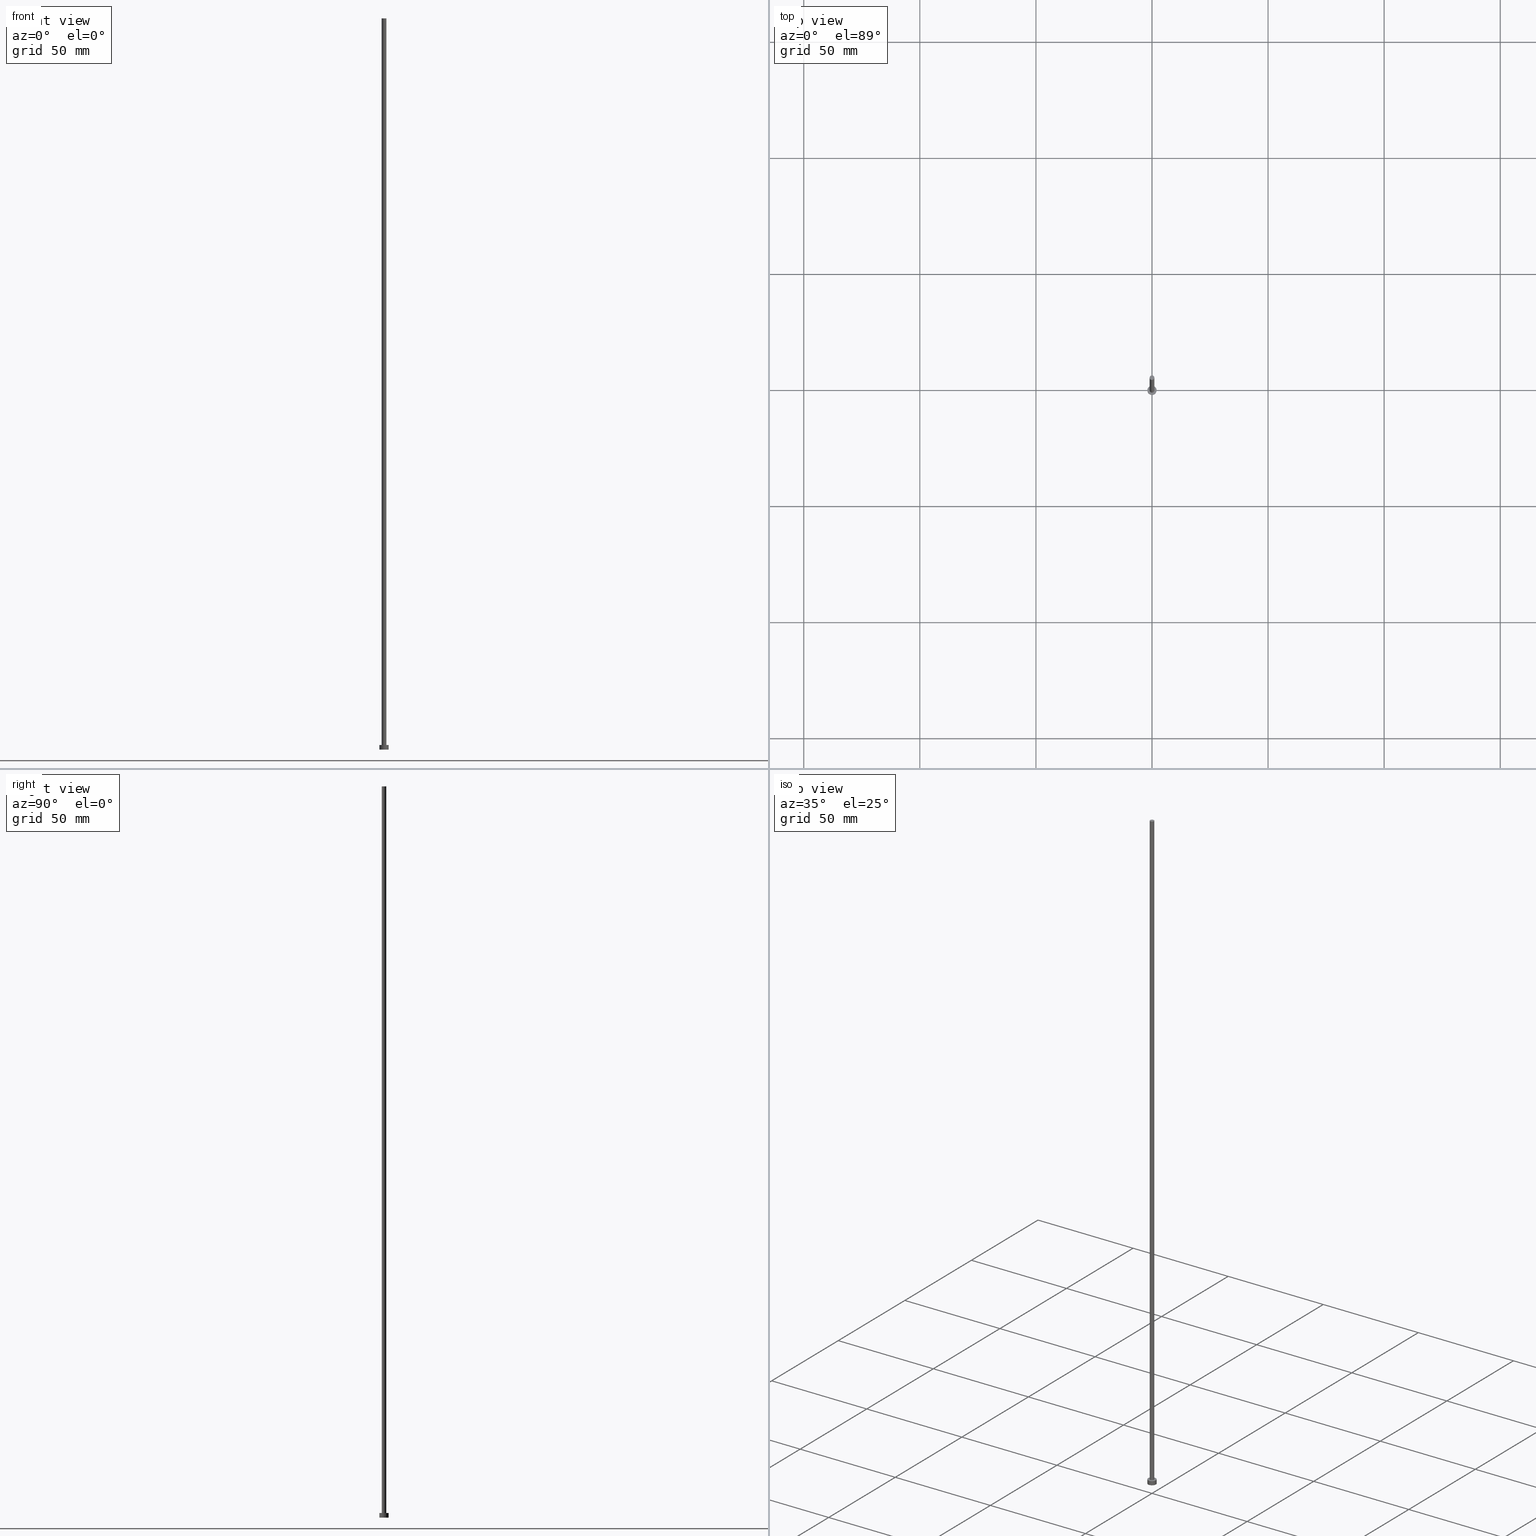
[diagram: canonical four-view strip — front | top / right | iso, engineering-drawing reading convention]
A machine part, canonical four-view strip (front | top / right | iso — engineering-drawing reading convention). The complete STEP part file that produces these views, byte-faithful:
ISO-10303-21;
HEADER;
FILE_DESCRIPTION (( 'STEP AP203' ),
    '1' );
FILE_NAME ('18e3.STEP',
    '2023-02-12T12:22:58',
    ( '' ),
    ( '' ),
    'SwSTEP 2.0',
    'SolidWorks 2019',
    '' );
FILE_SCHEMA (( 'CONFIG_CONTROL_DESIGN' ));
ENDSEC;

DATA;
#1 = DIRECTION ( 'NONE',  ( 0.000000000000000000, 0.000000000000000000, 1.000000000000000000 ) ) ;
#2 = ORIENTED_EDGE ( 'NONE', *, *, #228, .F. ) ;
#3 = CC_DESIGN_PERSON_AND_ORGANIZATION_ASSIGNMENT ( #52, #175, ( #173 ) ) ;
#4 = CIRCLE ( 'NONE', #142, 1.000000000000000000 ) ;
#5 = FACE_OUTER_BOUND ( 'NONE', #187, .T. ) ;
#6 = CIRCLE ( 'NONE', #240, 2.000000000000000000 ) ;
#7 = APPLICATION_CONTEXT ( 'configuration controlled 3d designs of mechanical parts and assemblies' ) ;
#8 = ORIENTED_EDGE ( 'NONE', *, *, #94, .T. ) ;
#9 = ORIENTED_EDGE ( 'NONE', *, *, #246, .T. ) ;
#10 = CC_DESIGN_PERSON_AND_ORGANIZATION_ASSIGNMENT ( #247, #195, ( #216 ) ) ;
#11 = DIRECTION ( 'NONE',  ( 1.000000000000000000, 0.000000000000000000, 0.000000000000000000 ) ) ;
#12 =( NAMED_UNIT ( * ) PLANE_ANGLE_UNIT ( ) SI_UNIT ( $, .RADIAN. ) );
#13 = PERSON_AND_ORGANIZATION ( #112, #78 ) ;
#14 = CALENDAR_DATE ( 2023, 12, 2 ) ;
#15 = AXIS2_PLACEMENT_3D ( 'NONE', #207, #1, #133 ) ;
#16 = ADVANCED_FACE ( 'NONE', ( #230 ), #119, .T. ) ;
#17 = CARTESIAN_POINT ( 'NONE',  ( 0.000000000000000000, 0.000000000000000000, 0.000000000000000000 ) ) ;
#18 = CARTESIAN_POINT ( 'NONE',  ( -2.000000000000000000, 0.000000000000000000, 0.000000000000000000 ) ) ;
#19 = CARTESIAN_POINT ( 'NONE',  ( 0.000000000000000000, 0.000000000000000000, 315.0000000000000000 ) ) ;
#20 = AXIS2_PLACEMENT_3D ( 'NONE', #161, #63, #101 ) ;
#21 = LINE ( 'NONE', #165, #148 ) ;
#22 = DIRECTION ( 'NONE',  ( -1.000000000000000000, 0.000000000000000000, 0.000000000000000000 ) ) ;
#23 = LOCAL_TIME ( 13, 22, 58.00000000000000000, #130 ) ;
#24 = DIRECTION ( 'NONE',  ( -1.000000000000000000, 0.000000000000000000, 0.000000000000000000 ) ) ;
#25 = CARTESIAN_POINT ( 'NONE',  ( -1.000000000000000000, 0.000000000000000000, 315.0000000000000000 ) ) ;
#26 = ORIENTED_EDGE ( 'NONE', *, *, #152, .T. ) ;
#27 = ORIENTED_EDGE ( 'NONE', *, *, #246, .F. ) ;
#28 = ADVANCED_FACE ( 'NONE', ( #117 ), #234, .F. ) ;
#29 = CARTESIAN_POINT ( 'NONE',  ( 0.000000000000000000, 0.000000000000000000, 0.000000000000000000 ) ) ;
#30 = ORIENTED_EDGE ( 'NONE', *, *, #163, .F. ) ;
#31 = DATE_TIME_ROLE ( 'creation_date' ) ;
#32 = PERSON_AND_ORGANIZATION ( #112, #78 ) ;
#33 = DATE_AND_TIME ( #93, #123 ) ;
#34 = COORDINATED_UNIVERSAL_TIME_OFFSET ( 1, 0, .AHEAD. ) ;
#35 = ORIENTED_EDGE ( 'NONE', *, *, #181, .F. ) ;
#36 = DATE_AND_TIME ( #51, #23 ) ;
#37 = DIRECTION ( 'NONE',  ( 1.000000000000000000, 0.000000000000000000, -0.000000000000000000 ) ) ;
#38 = DIRECTION ( 'NONE',  ( -0.000000000000000000, -0.000000000000000000, -1.000000000000000000 ) ) ;
#39 = CC_DESIGN_APPROVAL ( #210, ( #173 ) ) ;
#40 = LINE ( 'NONE', #202, #88 ) ;
#41 = PLANE ( 'NONE',  #226 ) ;
#42 = AXIS2_PLACEMENT_3D ( 'NONE', #158, #118, #56 ) ;
#43 = DIRECTION ( 'NONE',  ( -0.000000000000000000, -0.000000000000000000, -1.000000000000000000 ) ) ;
#44 = MANIFOLD_SOLID_BREP ( 'P�idat vysunut�m3', #86 ) ;
#45 = PRODUCT_DEFINITION ( 'NEZN�M�', '', #216, #83 ) ;
#46 = VERTEX_POINT ( 'NONE', #176 ) ;
#47 = CARTESIAN_POINT ( 'NONE',  ( -2.000000000000000000, 0.000000000000000000, 2.000000000000000000 ) ) ;
#48 =( GEOMETRIC_REPRESENTATION_CONTEXT ( 3 ) GLOBAL_UNCERTAINTY_ASSIGNED_CONTEXT ( ( #124 ) ) GLOBAL_UNIT_ASSIGNED_CONTEXT ( ( #106, #12, #150 ) ) REPRESENTATION_CONTEXT ( 'NONE', 'WORKASPACE' ) );
#49 = EDGE_CURVE ( 'NONE', #66, #249, #92, .T. ) ;
#50 = VERTEX_POINT ( 'NONE', #18 ) ;
#51 = CALENDAR_DATE ( 2023, 12, 2 ) ;
#52 = PERSON_AND_ORGANIZATION ( #112, #78 ) ;
#53 = EDGE_CURVE ( 'NONE', #122, #132, #75, .T. ) ;
#54 = APPROVAL_PERSON_ORGANIZATION ( #215, #210, #229 ) ;
#55 = DATE_AND_TIME ( #74, #245 ) ;
#56 = DIRECTION ( 'NONE',  ( 1.000000000000000000, 0.000000000000000000, -0.000000000000000000 ) ) ;
#57 = APPROVAL_STATUS ( 'not_yet_approved' ) ;
#58 = DIRECTION ( 'NONE',  ( -0.000000000000000000, -0.000000000000000000, -1.000000000000000000 ) ) ;
#59 = FACE_OUTER_BOUND ( 'NONE', #156, .T. ) ;
#60 = CARTESIAN_POINT ( 'NONE',  ( 0.000000000000000000, 0.000000000000000000, 315.0000000000000000 ) ) ;
#61 = DIRECTION ( 'NONE',  ( 0.000000000000000000, 0.000000000000000000, 1.000000000000000000 ) ) ;
#62 = AXIS2_PLACEMENT_3D ( 'NONE', #29, #114, #91 ) ;
#63 = DIRECTION ( 'NONE',  ( 0.000000000000000000, 0.000000000000000000, 1.000000000000000000 ) ) ;
#64 = EDGE_LOOP ( 'NONE', ( #35, #186, #137, #220 ) ) ;
#65 = CARTESIAN_POINT ( 'NONE',  ( 0.000000000000000000, 0.000000000000000000, 2.000000000000000000 ) ) ;
#66 = VERTEX_POINT ( 'NONE', #235 ) ;
#67 = PRODUCT_DEFINITION_SHAPE ( 'NONE', 'NONE',  #45 ) ;
#68 = ADVANCED_FACE ( 'NONE', ( #59 ), #41, .T. ) ;
#69 = CARTESIAN_POINT ( 'NONE',  ( 2.000000000000000000, 2.449293598294706414E-16, 0.000000000000000000 ) ) ;
#70 = CIRCLE ( 'NONE', #100, 1.000000000000000000 ) ;
#71 = CC_DESIGN_PERSON_AND_ORGANIZATION_ASSIGNMENT ( #250, #109, ( #216 ) ) ;
#72 = EDGE_LOOP ( 'NONE', ( #171, #141 ) ) ;
#73 = APPROVAL_STATUS ( 'not_yet_approved' ) ;
#74 = CALENDAR_DATE ( 2023, 12, 2 ) ;
#75 = CIRCLE ( 'NONE', #125, 1.000000000000000000 ) ;
#76 = PLANE ( 'NONE',  #42 ) ;
#77 = DIRECTION ( 'NONE',  ( -0.000000000000000000, -0.000000000000000000, -1.000000000000000000 ) ) ;
#78 = ORGANIZATION ( 'NEUR�EN�', 'NEUR�EN�', '' ) ;
#79 = CARTESIAN_POINT ( 'NONE',  ( 0.000000000000000000, 0.000000000000000000, 2.000000000000000000 ) ) ;
#80 = CARTESIAN_POINT ( 'NONE',  ( 0.000000000000000000, 0.000000000000000000, 2.000000000000000000 ) ) ;
#81 = PERSON_AND_ORGANIZATION ( #112, #78 ) ;
#82 = CC_DESIGN_SECURITY_CLASSIFICATION ( #173, ( #216 ) ) ;
#83 = DESIGN_CONTEXT ( 'detailed design', #7, 'design' ) ;
#84 = AXIS2_PLACEMENT_3D ( 'NONE', #80, #58, #121 ) ;
#85 = CC_DESIGN_PERSON_AND_ORGANIZATION_ASSIGNMENT ( #32, #155, ( #45 ) ) ;
#86 = CLOSED_SHELL ( 'NONE', ( #16, #219, #143, #102, #28, #116, #68 ) ) ;
#87 = DIRECTION ( 'NONE',  ( 0.000000000000000000, 0.000000000000000000, 1.000000000000000000 ) ) ;
#88 = VECTOR ( 'NONE', #170, 1000.000000000000000 ) ;
#89 = DATE_AND_TIME ( #14, #179 ) ;
#90 = DATE_TIME_ROLE ( 'classification_date' ) ;
#91 = DIRECTION ( 'NONE',  ( 1.000000000000000000, 0.000000000000000000, 0.000000000000000000 ) ) ;
#92 = LINE ( 'NONE', #166, #238 ) ;
#93 = CALENDAR_DATE ( 2023, 12, 2 ) ;
#94 = EDGE_CURVE ( 'NONE', #50, #249, #6, .T. ) ;
#95 = CIRCLE ( 'NONE', #213, 1.000000000000000000 ) ;
#96 = APPROVAL_STATUS ( 'not_yet_approved' ) ;
#97 = FACE_OUTER_BOUND ( 'NONE', #188, .T. ) ;
#98 = DIRECTION ( 'NONE',  ( 0.000000000000000000, 0.000000000000000000, 1.000000000000000000 ) ) ;
#99 = APPLICATION_PROTOCOL_DEFINITION ( 'international standard', 'config_control_design', 1994, #7 ) ;
#100 = AXIS2_PLACEMENT_3D ( 'NONE', #65, #140, #127 ) ;
#101 = DIRECTION ( 'NONE',  ( 1.000000000000000000, 0.000000000000000000, 0.000000000000000000 ) ) ;
#102 = ADVANCED_FACE ( 'NONE', ( #243, #253 ), #76, .T. ) ;
#103 = CARTESIAN_POINT ( 'NONE',  ( 1.000000000000000000, 1.224646799147353207E-16, 315.0000000000000000 ) ) ;
#104 = ORIENTED_EDGE ( 'NONE', *, *, #94, .F. ) ;
#105 = PRODUCT ( '18e3', '18e3', '', ( #153 ) ) ;
#106 =( LENGTH_UNIT ( ) NAMED_UNIT ( * ) SI_UNIT ( .MILLI., .METRE. ) );
#107 = CC_DESIGN_PERSON_AND_ORGANIZATION_ASSIGNMENT ( #192, #217, ( #105 ) ) ;
#108 = ORIENTED_EDGE ( 'NONE', *, *, #152, .F. ) ;
#109 = PERSON_AND_ORGANIZATION_ROLE ( 'design_supplier' ) ;
#110 = COORDINATED_UNIVERSAL_TIME_OFFSET ( 1, 0, .AHEAD. ) ;
#111 = PRODUCT_RELATED_PRODUCT_CATEGORY ( 'detail', '', ( #105 ) ) ;
#112 = PERSON ( 'NEUR�EN�', 'NEUR�EN�', 'NEUR�EN�', ('NEUR�EN�'), ('NEUR�EN�'), ('NEUR�EN�') ) ;
#113 = AXIS2_PLACEMENT_3D ( 'NONE', #168, #183, #236 ) ;
#114 = DIRECTION ( 'NONE',  ( 0.000000000000000000, 0.000000000000000000, 1.000000000000000000 ) ) ;
#115 = CARTESIAN_POINT ( 'NONE',  ( 0.000000000000000000, 0.000000000000000000, 315.0000000000000000 ) ) ;
#116 = ADVANCED_FACE ( 'NONE', ( #200 ), #174, .T. ) ;
#117 = FACE_OUTER_BOUND ( 'NONE', #128, .T. ) ;
#118 = DIRECTION ( 'NONE',  ( 0.000000000000000000, 0.000000000000000000, 1.000000000000000000 ) ) ;
#119 = CYLINDRICAL_SURFACE ( 'NONE', #157, 1.000000000000000000 ) ;
#120 = APPROVAL_PERSON_ORGANIZATION ( #13, #134, #151 ) ;
#121 = DIRECTION ( 'NONE',  ( -1.000000000000000000, 0.000000000000000000, 0.000000000000000000 ) ) ;
#122 = VERTEX_POINT ( 'NONE', #103 ) ;
#123 = LOCAL_TIME ( 13, 22, 58.00000000000000000, #197 ) ;
#124 = UNCERTAINTY_MEASURE_WITH_UNIT (LENGTH_MEASURE( 1.000000000000000082E-05 ), #106, 'distance_accuracy_value', 'NONE');
#125 = AXIS2_PLACEMENT_3D ( 'NONE', #159, #98, #255 ) ;
#126 = CC_DESIGN_APPROVAL ( #134, ( #216 ) ) ;
#127 = DIRECTION ( 'NONE',  ( 1.000000000000000000, 0.000000000000000000, 0.000000000000000000 ) ) ;
#128 = EDGE_LOOP ( 'NONE', ( #104, #108 ) ) ;
#129 = APPROVAL_DATE_TIME ( #36, #134 ) ;
#130 = COORDINATED_UNIVERSAL_TIME_OFFSET ( 1, 0, .AHEAD. ) ;
#131 = EDGE_CURVE ( 'NONE', #66, #138, #254, .T. ) ;
#132 = VERTEX_POINT ( 'NONE', #178 ) ;
#133 = DIRECTION ( 'NONE',  ( 1.000000000000000000, 0.000000000000000000, 0.000000000000000000 ) ) ;
#134 = APPROVAL ( #96, 'NEUR�EN�' ) ;
#135 = DIRECTION ( 'NONE',  ( 0.000000000000000000, 0.000000000000000000, 1.000000000000000000 ) ) ;
#136 = DIRECTION ( 'NONE',  ( -0.000000000000000000, -0.000000000000000000, -1.000000000000000000 ) ) ;
#137 = ORIENTED_EDGE ( 'NONE', *, *, #163, .T. ) ;
#138 = VERTEX_POINT ( 'NONE', #47 ) ;
#139 = AXIS2_PLACEMENT_3D ( 'NONE', #19, #208, #22 ) ;
#140 = DIRECTION ( 'NONE',  ( 0.000000000000000000, 0.000000000000000000, 1.000000000000000000 ) ) ;
#141 = ORIENTED_EDGE ( 'NONE', *, *, #131, .T. ) ;
#142 = AXIS2_PLACEMENT_3D ( 'NONE', #60, #135, #203 ) ;
#143 = ADVANCED_FACE ( 'NONE', ( #97 ), #177, .T. ) ;
#144 = ADVANCED_BREP_SHAPE_REPRESENTATION ( '18e3', ( #44, #62 ), #48 ) ;
#145 = DIRECTION ( 'NONE',  ( 1.000000000000000000, 0.000000000000000000, 0.000000000000000000 ) ) ;
#146 = APPROVAL ( #57, 'NEUR�EN�' ) ;
#147 = ORIENTED_EDGE ( 'NONE', *, *, #185, .F. ) ;
#148 = VECTOR ( 'NONE', #43, 1000.000000000000000 ) ;
#149 = AXIS2_PLACEMENT_3D ( 'NONE', #79, #136, #24 ) ;
#150 =( NAMED_UNIT ( * ) SI_UNIT ( $, .STERADIAN. ) SOLID_ANGLE_UNIT ( ) );
#151 = APPROVAL_ROLE ( '' ) ;
#152 = EDGE_CURVE ( 'NONE', #249, #50, #201, .T. ) ;
#153 = MECHANICAL_CONTEXT ( 'NONE', #160, 'mechanical' ) ;
#154 = SECURITY_CLASSIFICATION_LEVEL ( 'unclassified' ) ;
#155 = PERSON_AND_ORGANIZATION_ROLE ( 'creator' ) ;
#156 = EDGE_LOOP ( 'NONE', ( #209, #184 ) ) ;
#157 = AXIS2_PLACEMENT_3D ( 'NONE', #115, #237, #218 ) ;
#158 = CARTESIAN_POINT ( 'NONE',  ( 0.000000000000000000, 0.000000000000000000, 2.000000000000000000 ) ) ;
#159 = CARTESIAN_POINT ( 'NONE',  ( 0.000000000000000000, 0.000000000000000000, 315.0000000000000000 ) ) ;
#160 = APPLICATION_CONTEXT ( 'configuration controlled 3d designs of mechanical parts and assemblies' ) ;
#161 = CARTESIAN_POINT ( 'NONE',  ( 0.000000000000000000, 0.000000000000000000, 2.000000000000000000 ) ) ;
#162 = ORIENTED_EDGE ( 'NONE', *, *, #169, .T. ) ;
#163 = EDGE_CURVE ( 'NONE', #132, #242, #222, .T. ) ;
#164 = APPROVAL_ROLE ( '' ) ;
#165 = CARTESIAN_POINT ( 'NONE',  ( 1.000000000000000000, 1.224646799147353207E-16, 315.0000000000000000 ) ) ;
#166 = CARTESIAN_POINT ( 'NONE',  ( 2.000000000000000000, 2.449293598294706414E-16, 2.000000000000000000 ) ) ;
#167 = VECTOR ( 'NONE', #77, 1000.000000000000000 ) ;
#168 = CARTESIAN_POINT ( 'NONE',  ( 0.000000000000000000, 0.000000000000000000, 2.000000000000000000 ) ) ;
#169 = EDGE_CURVE ( 'NONE', #138, #50, #40, .T. ) ;
#170 = DIRECTION ( 'NONE',  ( -0.000000000000000000, -0.000000000000000000, -1.000000000000000000 ) ) ;
#171 = ORIENTED_EDGE ( 'NONE', *, *, #185, .T. ) ;
#172 = CC_DESIGN_DATE_AND_TIME_ASSIGNMENT ( #55, #90, ( #173 ) ) ;
#173 = SECURITY_CLASSIFICATION ( '', '', #154 ) ;
#174 = CYLINDRICAL_SURFACE ( 'NONE', #139, 1.000000000000000000 ) ;
#175 = PERSON_AND_ORGANIZATION_ROLE ( 'classification_officer' ) ;
#176 = CARTESIAN_POINT ( 'NONE',  ( 1.000000000000000000, 1.224646799147353207E-16, 2.000000000000000000 ) ) ;
#177 = CYLINDRICAL_SURFACE ( 'NONE', #84, 2.000000000000000000 ) ;
#178 = CARTESIAN_POINT ( 'NONE',  ( -1.000000000000000000, 0.000000000000000000, 315.0000000000000000 ) ) ;
#179 = LOCAL_TIME ( 13, 22, 58.00000000000000000, #110 ) ;
#180 = CC_DESIGN_APPROVAL ( #146, ( #45 ) ) ;
#181 = EDGE_CURVE ( 'NONE', #122, #46, #21, .T. ) ;
#182 = CARTESIAN_POINT ( 'NONE',  ( 0.000000000000000000, 0.000000000000000000, 2.000000000000000000 ) ) ;
#183 = DIRECTION ( 'NONE',  ( 0.000000000000000000, 0.000000000000000000, 1.000000000000000000 ) ) ;
#184 = ORIENTED_EDGE ( 'NONE', *, *, #53, .T. ) ;
#185 = EDGE_CURVE ( 'NONE', #138, #66, #221, .T. ) ;
#186 = ORIENTED_EDGE ( 'NONE', *, *, #212, .F. ) ;
#187 = EDGE_LOOP ( 'NONE', ( #248, #241, #26, #206 ) ) ;
#188 = EDGE_LOOP ( 'NONE', ( #204, #147, #162, #8 ) ) ;
#189 = AXIS2_PLACEMENT_3D ( 'NONE', #198, #196, #224 ) ;
#190 = CARTESIAN_POINT ( 'NONE',  ( 0.000000000000000000, 0.000000000000000000, 315.0000000000000000 ) ) ;
#191 = SHAPE_DEFINITION_REPRESENTATION ( #67, #144 ) ;
#192 = PERSON_AND_ORGANIZATION ( #112, #78 ) ;
#193 = ORIENTED_EDGE ( 'NONE', *, *, #53, .F. ) ;
#194 = APPROVAL_PERSON_ORGANIZATION ( #81, #146, #164 ) ;
#195 = PERSON_AND_ORGANIZATION_ROLE ( 'creator' ) ;
#196 = DIRECTION ( 'NONE',  ( 0.000000000000000000, 0.000000000000000000, 1.000000000000000000 ) ) ;
#197 = COORDINATED_UNIVERSAL_TIME_OFFSET ( 1, 0, .AHEAD. ) ;
#198 = CARTESIAN_POINT ( 'NONE',  ( 0.000000000000000000, 0.000000000000000000, 0.000000000000000000 ) ) ;
#199 = CALENDAR_DATE ( 2023, 12, 2 ) ;
#200 = FACE_OUTER_BOUND ( 'NONE', #64, .T. ) ;
#201 = CIRCLE ( 'NONE', #15, 2.000000000000000000 ) ;
#202 = CARTESIAN_POINT ( 'NONE',  ( -2.000000000000000000, 0.000000000000000000, 2.000000000000000000 ) ) ;
#203 = DIRECTION ( 'NONE',  ( 1.000000000000000000, 0.000000000000000000, 0.000000000000000000 ) ) ;
#204 = ORIENTED_EDGE ( 'NONE', *, *, #49, .F. ) ;
#205 = LOCAL_TIME ( 13, 22, 58.00000000000000000, #34 ) ;
#206 = ORIENTED_EDGE ( 'NONE', *, *, #169, .F. ) ;
#207 = CARTESIAN_POINT ( 'NONE',  ( 0.000000000000000000, 0.000000000000000000, 0.000000000000000000 ) ) ;
#208 = DIRECTION ( 'NONE',  ( -0.000000000000000000, -0.000000000000000000, -1.000000000000000000 ) ) ;
#209 = ORIENTED_EDGE ( 'NONE', *, *, #212, .T. ) ;
#210 = APPROVAL ( #73, 'NEUR�EN�' ) ;
#211 = EDGE_LOOP ( 'NONE', ( #2, #27 ) ) ;
#212 = EDGE_CURVE ( 'NONE', #132, #122, #4, .T. ) ;
#213 = AXIS2_PLACEMENT_3D ( 'NONE', #182, #61, #145 ) ;
#214 = DATE_AND_TIME ( #199, #205 ) ;
#215 = PERSON_AND_ORGANIZATION ( #112, #78 ) ;
#216 = PRODUCT_DEFINITION_FORMATION_WITH_SPECIFIED_SOURCE ( 'LIBOVOLN�', '', #105, .NOT_KNOWN. ) ;
#217 = PERSON_AND_ORGANIZATION_ROLE ( 'design_owner' ) ;
#218 = DIRECTION ( 'NONE',  ( -1.000000000000000000, 0.000000000000000000, 0.000000000000000000 ) ) ;
#219 = ADVANCED_FACE ( 'NONE', ( #5 ), #239, .T. ) ;
#220 = ORIENTED_EDGE ( 'NONE', *, *, #228, .T. ) ;
#221 = CIRCLE ( 'NONE', #113, 2.000000000000000000 ) ;
#222 = LINE ( 'NONE', #25, #167 ) ;
#223 = ORIENTED_EDGE ( 'NONE', *, *, #181, .T. ) ;
#224 = DIRECTION ( 'NONE',  ( 1.000000000000000000, 0.000000000000000000, -0.000000000000000000 ) ) ;
#225 = EDGE_LOOP ( 'NONE', ( #193, #223, #9, #30 ) ) ;
#226 = AXIS2_PLACEMENT_3D ( 'NONE', #190, #232, #37 ) ;
#227 = CARTESIAN_POINT ( 'NONE',  ( -1.000000000000000000, 0.000000000000000000, 2.000000000000000000 ) ) ;
#228 = EDGE_CURVE ( 'NONE', #242, #46, #95, .T. ) ;
#229 = APPROVAL_ROLE ( '' ) ;
#230 = FACE_OUTER_BOUND ( 'NONE', #225, .T. ) ;
#231 = COORDINATED_UNIVERSAL_TIME_OFFSET ( 1, 0, .AHEAD. ) ;
#232 = DIRECTION ( 'NONE',  ( 0.000000000000000000, 0.000000000000000000, 1.000000000000000000 ) ) ;
#233 = APPLICATION_PROTOCOL_DEFINITION ( 'international standard', 'config_control_design', 1994, #160 ) ;
#234 = PLANE ( 'NONE',  #189 ) ;
#235 = CARTESIAN_POINT ( 'NONE',  ( 2.000000000000000000, 2.449293598294706414E-16, 2.000000000000000000 ) ) ;
#236 = DIRECTION ( 'NONE',  ( 1.000000000000000000, 0.000000000000000000, 0.000000000000000000 ) ) ;
#237 = DIRECTION ( 'NONE',  ( -0.000000000000000000, -0.000000000000000000, -1.000000000000000000 ) ) ;
#238 = VECTOR ( 'NONE', #38, 1000.000000000000000 ) ;
#239 = CYLINDRICAL_SURFACE ( 'NONE', #149, 2.000000000000000000 ) ;
#240 = AXIS2_PLACEMENT_3D ( 'NONE', #17, #87, #11 ) ;
#241 = ORIENTED_EDGE ( 'NONE', *, *, #49, .T. ) ;
#242 = VERTEX_POINT ( 'NONE', #227 ) ;
#243 = FACE_BOUND ( 'NONE', #211, .T. ) ;
#244 = APPROVAL_DATE_TIME ( #89, #146 ) ;
#245 = LOCAL_TIME ( 13, 22, 58.00000000000000000, #231 ) ;
#246 = EDGE_CURVE ( 'NONE', #46, #242, #70, .T. ) ;
#247 = PERSON_AND_ORGANIZATION ( #112, #78 ) ;
#248 = ORIENTED_EDGE ( 'NONE', *, *, #131, .F. ) ;
#249 = VERTEX_POINT ( 'NONE', #69 ) ;
#250 = PERSON_AND_ORGANIZATION ( #112, #78 ) ;
#251 = CC_DESIGN_DATE_AND_TIME_ASSIGNMENT ( #33, #31, ( #45 ) ) ;
#252 = APPROVAL_DATE_TIME ( #214, #210 ) ;
#253 = FACE_OUTER_BOUND ( 'NONE', #72, .T. ) ;
#254 = CIRCLE ( 'NONE', #20, 2.000000000000000000 ) ;
#255 = DIRECTION ( 'NONE',  ( 1.000000000000000000, 0.000000000000000000, 0.000000000000000000 ) ) ;
ENDSEC;
END-ISO-10303-21;
